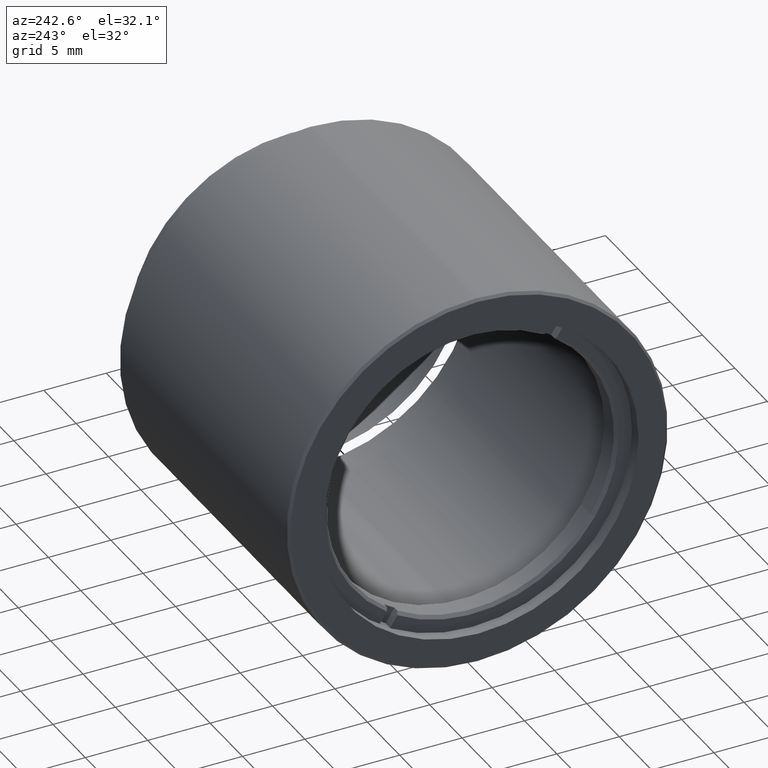
[diagram: clean part render]
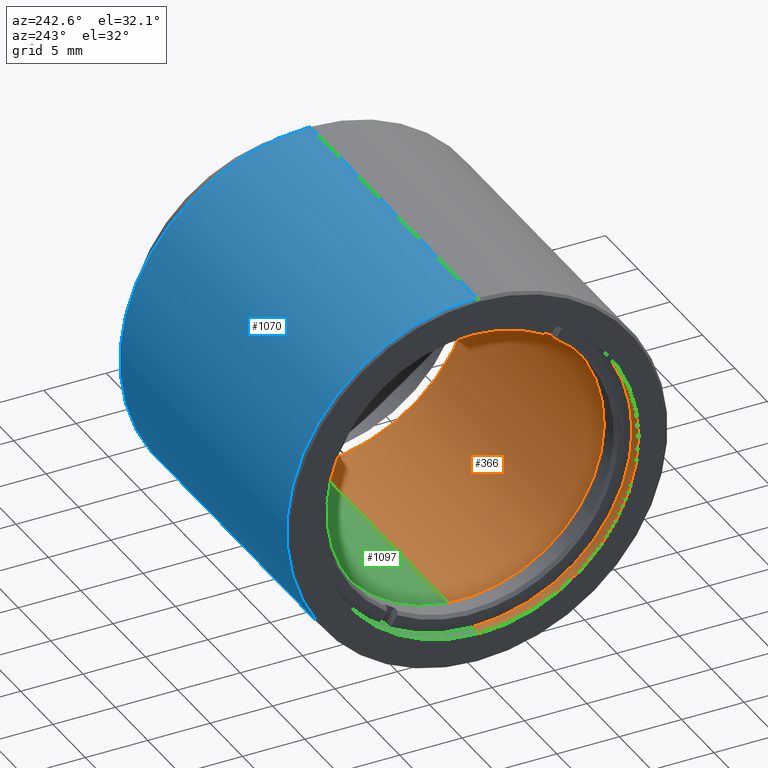
[diagram: same view with three faces highlighted in distinct colors, each labeled with its STEP entity id]
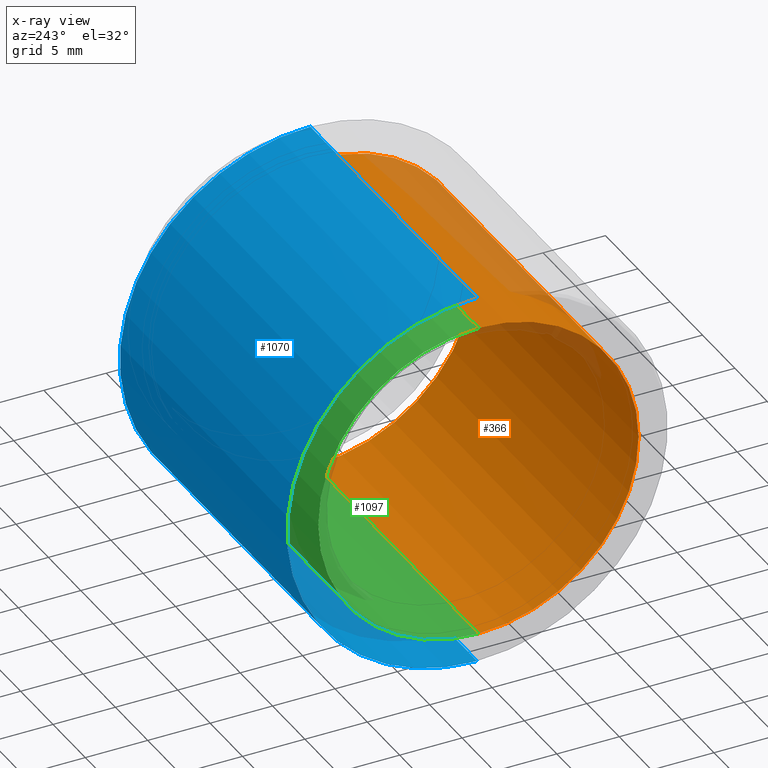
[diagram: x-ray of the same camera — body ghosted, the three highlighted faces saturated]
A machine part, auxiliary view with three faces highlighted in distinct colors.
The next image is the same camera in x-ray (body ghosted, the three faces saturated) — at least one of them is partly hidden behind the body in this view.
Their STEP definitions:

[orange] entity #366 — the highlighted cylindrical surface (partial cylindrical patch) has radius 12.827 mm, axis along (1, -0, -0).
#15 = CARTESIAN_POINT ( 'NONE',  ( 2.725999999999982659, -20.10857142857141966, -12.82699999999999818 ) ) ;
#18 = EDGE_CURVE ( 'NONE', #567, #865, #714, .T. ) ;
#34 = CARTESIAN_POINT ( 'NONE',  ( -22.67400000000001725, -20.10857142857141966, 12.82699999999999818 ) ) ;
#108 = AXIS2_PLACEMENT_3D ( 'NONE', #294, #181, #405 ) ;
#114 = CIRCLE ( 'NONE', #275, 12.82699999999999818 ) ;
#177 = CARTESIAN_POINT ( 'NONE',  ( -22.67400000000001725, -20.10857142857141966, 12.82699999999999818 ) ) ;
#181 = DIRECTION ( 'NONE',  ( -1.000000000000000000, 0.000000000000000000, 0.000000000000000000 ) ) ;
#275 = AXIS2_PLACEMENT_3D ( 'NONE', #1566, #1438, #590 ) ;
#292 = AXIS2_PLACEMENT_3D ( 'NONE', #1426, #1053, #701 ) ;
#294 = CARTESIAN_POINT ( 'NONE',  ( -22.67400000000001725, -20.10857142857141966, 0.000000000000000000 ) ) ;
#361 = CYLINDRICAL_SURFACE ( 'NONE', #292, 12.82699999999999818 ) ;
#366 = ADVANCED_FACE ( 'NONE', ( #434 ), #361, .F. ) ;
#405 = DIRECTION ( 'NONE',  ( 0.000000000000000000, 0.000000000000000000, 1.000000000000000000 ) ) ;
#434 = FACE_OUTER_BOUND ( 'NONE', #611, .T. ) ;
#437 = VECTOR ( 'NONE', #634, 1000.000000000000000 ) ;
#567 = VERTEX_POINT ( 'NONE', #1463 ) ;
#590 = DIRECTION ( 'NONE',  ( 0.000000000000000000, 0.000000000000000000, 1.000000000000000000 ) ) ;
#597 = CARTESIAN_POINT ( 'NONE',  ( 2.725999999999982659, -20.10857142857141966, 12.82699999999999818 ) ) ;
#611 = EDGE_LOOP ( 'NONE', ( #1219, #729, #923, #1237 ) ) ;
#634 = DIRECTION ( 'NONE',  ( 1.000000000000000000, -0.000000000000000000, -0.000000000000000000 ) ) ;
#644 = CARTESIAN_POINT ( 'NONE',  ( -22.67400000000001725, -20.10857142857141966, -12.82699999999999818 ) ) ;
#701 = DIRECTION ( 'NONE',  ( 0.000000000000000000, 0.000000000000000000, -1.000000000000000000 ) ) ;
#714 = CIRCLE ( 'NONE', #108, 12.82699999999999818 ) ;
#729 = ORIENTED_EDGE ( 'NONE', *, *, #1527, .T. ) ;
#852 = LINE ( 'NONE', #644, #437 ) ;
#865 = VERTEX_POINT ( 'NONE', #34 ) ;
#866 = VERTEX_POINT ( 'NONE', #15 ) ;
#923 = ORIENTED_EDGE ( 'NONE', *, *, #1087, .F. ) ;
#1053 = DIRECTION ( 'NONE',  ( 1.000000000000000000, -0.000000000000000000, -0.000000000000000000 ) ) ;
#1087 = EDGE_CURVE ( 'NONE', #866, #1146, #114, .T. ) ;
#1091 = VECTOR ( 'NONE', #1268, 1000.000000000000000 ) ;
#1146 = VERTEX_POINT ( 'NONE', #597 ) ;
#1169 = LINE ( 'NONE', #177, #1091 ) ;
#1219 = ORIENTED_EDGE ( 'NONE', *, *, #18, .T. ) ;
#1237 = ORIENTED_EDGE ( 'NONE', *, *, #1331, .F. ) ;
#1268 = DIRECTION ( 'NONE',  ( 1.000000000000000000, -0.000000000000000000, -0.000000000000000000 ) ) ;
#1331 = EDGE_CURVE ( 'NONE', #567, #866, #852, .T. ) ;
#1426 = CARTESIAN_POINT ( 'NONE',  ( -22.67400000000001725, -20.10857142857141966, 0.000000000000000000 ) ) ;
#1438 = DIRECTION ( 'NONE',  ( -1.000000000000000000, 0.000000000000000000, 0.000000000000000000 ) ) ;
#1463 = CARTESIAN_POINT ( 'NONE',  ( -22.67400000000001725, -20.10857142857141966, -12.82699999999999818 ) ) ;
#1527 = EDGE_CURVE ( 'NONE', #865, #1146, #1169, .T. ) ;
#1566 = CARTESIAN_POINT ( 'NONE',  ( 2.725999999999982659, -20.10857142857141966, 0.000000000000000000 ) ) ;

[blue] entity #1070 — the highlighted cylindrical surface (partial cylindrical patch) has radius 15.25 mm, axis along (-1, -0, -0).
#4 = VECTOR ( 'NONE', #1523, 1000.000000000000000 ) ;
#13 = DIRECTION ( 'NONE',  ( -1.000000000000000000, 0.000000000000000000, 0.000000000000000000 ) ) ;
#82 = VERTEX_POINT ( 'NONE', #640 ) ;
#83 = LINE ( 'NONE', #1529, #4 ) ;
#90 = CARTESIAN_POINT ( 'NONE',  ( 3.525999999999982926, -20.10857142857141966, 0.000000000000000000 ) ) ;
#125 = CARTESIAN_POINT ( 'NONE',  ( 3.325999999999985857, -20.10857142857141966, 0.000000000000000000 ) ) ;
#212 = DIRECTION ( 'NONE',  ( 1.000000000000000000, 0.000000000000000000, 0.000000000000000000 ) ) ;
#216 = AXIS2_PLACEMENT_3D ( 'NONE', #461, #212, #580 ) ;
#252 = AXIS2_PLACEMENT_3D ( 'NONE', #90, #441, #1577 ) ;
#312 = EDGE_CURVE ( 'NONE', #990, #1280, #1491, .T. ) ;
#441 = DIRECTION ( 'NONE',  ( -1.000000000000000000, -0.000000000000000000, -0.000000000000000000 ) ) ;
#461 = CARTESIAN_POINT ( 'NONE',  ( -22.47400000000001086, -20.10857142857141966, 0.000000000000000000 ) ) ;
#543 = ORIENTED_EDGE ( 'NONE', *, *, #1554, .F. ) ;
#579 = ORIENTED_EDGE ( 'NONE', *, *, #872, .T. ) ;
#580 = DIRECTION ( 'NONE',  ( 0.000000000000000000, 0.000000000000000000, 1.000000000000000000 ) ) ;
#600 = ORIENTED_EDGE ( 'NONE', *, *, #1259, .T. ) ;
#640 = CARTESIAN_POINT ( 'NONE',  ( 3.325999999999985857, -20.10857142857141611, -15.25000000000000000 ) ) ;
#718 = CYLINDRICAL_SURFACE ( 'NONE', #252, 15.25000000000000000 ) ;
#759 = VERTEX_POINT ( 'NONE', #1333 ) ;
#822 = CARTESIAN_POINT ( 'NONE',  ( -22.47400000000001086, -20.10857142857141966, -15.25000000000000000 ) ) ;
#859 = FACE_OUTER_BOUND ( 'NONE', #1336, .T. ) ;
#870 = CARTESIAN_POINT ( 'NONE',  ( -22.47400000000001086, -20.10857142857141611, 15.25000000000000000 ) ) ;
#872 = EDGE_CURVE ( 'NONE', #82, #990, #1525, .T. ) ;
#969 = DIRECTION ( 'NONE',  ( 0.000000000000000000, 0.000000000000000000, -1.000000000000000000 ) ) ;
#990 = VERTEX_POINT ( 'NONE', #822 ) ;
#1070 = ADVANCED_FACE ( 'NONE', ( #859 ), #718, .T. ) ;
#1259 = EDGE_CURVE ( 'NONE', #759, #82, #1399, .T. ) ;
#1280 = VERTEX_POINT ( 'NONE', #870 ) ;
#1327 = AXIS2_PLACEMENT_3D ( 'NONE', #125, #13, #969 ) ;
#1333 = CARTESIAN_POINT ( 'NONE',  ( 3.325999999999985857, -20.10857142857141966, 15.25000000000000000 ) ) ;
#1336 = EDGE_LOOP ( 'NONE', ( #600, #579, #1534, #543 ) ) ;
#1399 = CIRCLE ( 'NONE', #1327, 15.25000000000000000 ) ;
#1480 = CARTESIAN_POINT ( 'NONE',  ( 3.525999999999982926, -20.10857142857141611, -15.25000000000000000 ) ) ;
#1481 = DIRECTION ( 'NONE',  ( -1.000000000000000000, -0.000000000000000000, -0.000000000000000000 ) ) ;
#1484 = VECTOR ( 'NONE', #1481, 1000.000000000000000 ) ;
#1491 = CIRCLE ( 'NONE', #216, 15.25000000000000000 ) ;
#1523 = DIRECTION ( 'NONE',  ( -1.000000000000000000, -0.000000000000000000, -0.000000000000000000 ) ) ;
#1525 = LINE ( 'NONE', #1480, #1484 ) ;
#1529 = CARTESIAN_POINT ( 'NONE',  ( 3.525999999999982926, -20.10857142857141966, 15.25000000000000000 ) ) ;
#1534 = ORIENTED_EDGE ( 'NONE', *, *, #312, .T. ) ;
#1554 = EDGE_CURVE ( 'NONE', #759, #1280, #83, .T. ) ;
#1577 = DIRECTION ( 'NONE',  ( 0.000000000000000000, 0.000000000000000000, 1.000000000000000000 ) ) ;

[green] entity #1097 — the highlighted cylindrical surface (partial cylindrical patch) has radius 12.827 mm, axis along (1, -0, -0).
#15 = CARTESIAN_POINT ( 'NONE',  ( 2.725999999999982659, -20.10857142857141966, -12.82699999999999818 ) ) ;
#34 = CARTESIAN_POINT ( 'NONE',  ( -22.67400000000001725, -20.10857142857141966, 12.82699999999999818 ) ) ;
#115 = DIRECTION ( 'NONE',  ( 1.000000000000000000, -0.000000000000000000, -0.000000000000000000 ) ) ;
#118 = DIRECTION ( 'NONE',  ( 0.000000000000000000, 0.000000000000000000, 1.000000000000000000 ) ) ;
#152 = CARTESIAN_POINT ( 'NONE',  ( -22.67400000000001725, -20.10857142857141966, 0.000000000000000000 ) ) ;
#177 = CARTESIAN_POINT ( 'NONE',  ( -22.67400000000001725, -20.10857142857141966, 12.82699999999999818 ) ) ;
#208 = CIRCLE ( 'NONE', #1024, 12.82699999999999818 ) ;
#246 = CARTESIAN_POINT ( 'NONE',  ( 2.725999999999982659, -20.10857142857141966, 0.000000000000000000 ) ) ;
#251 = ORIENTED_EDGE ( 'NONE', *, *, #1331, .T. ) ;
#274 = EDGE_CURVE ( 'NONE', #865, #567, #208, .T. ) ;
#282 = DIRECTION ( 'NONE',  ( 0.000000000000000000, 0.000000000000000000, 1.000000000000000000 ) ) ;
#397 = AXIS2_PLACEMENT_3D ( 'NONE', #246, #1458, #118 ) ;
#437 = VECTOR ( 'NONE', #634, 1000.000000000000000 ) ;
#567 = VERTEX_POINT ( 'NONE', #1463 ) ;
#576 = CIRCLE ( 'NONE', #397, 12.82699999999999818 ) ;
#597 = CARTESIAN_POINT ( 'NONE',  ( 2.725999999999982659, -20.10857142857141966, 12.82699999999999818 ) ) ;
#634 = DIRECTION ( 'NONE',  ( 1.000000000000000000, -0.000000000000000000, -0.000000000000000000 ) ) ;
#644 = CARTESIAN_POINT ( 'NONE',  ( -22.67400000000001725, -20.10857142857141966, -12.82699999999999818 ) ) ;
#794 = FACE_OUTER_BOUND ( 'NONE', #1319, .T. ) ;
#797 = EDGE_CURVE ( 'NONE', #1146, #866, #576, .T. ) ;
#826 = ORIENTED_EDGE ( 'NONE', *, *, #1527, .F. ) ;
#852 = LINE ( 'NONE', #644, #437 ) ;
#865 = VERTEX_POINT ( 'NONE', #34 ) ;
#866 = VERTEX_POINT ( 'NONE', #15 ) ;
#995 = ORIENTED_EDGE ( 'NONE', *, *, #274, .T. ) ;
#1001 = DIRECTION ( 'NONE',  ( -1.000000000000000000, 0.000000000000000000, 0.000000000000000000 ) ) ;
#1024 = AXIS2_PLACEMENT_3D ( 'NONE', #152, #1001, #282 ) ;
#1078 = DIRECTION ( 'NONE',  ( 0.000000000000000000, 0.000000000000000000, -1.000000000000000000 ) ) ;
#1091 = VECTOR ( 'NONE', #1268, 1000.000000000000000 ) ;
#1097 = ADVANCED_FACE ( 'NONE', ( #794 ), #1403, .F. ) ;
#1135 = AXIS2_PLACEMENT_3D ( 'NONE', #1583, #115, #1078 ) ;
#1146 = VERTEX_POINT ( 'NONE', #597 ) ;
#1169 = LINE ( 'NONE', #177, #1091 ) ;
#1268 = DIRECTION ( 'NONE',  ( 1.000000000000000000, -0.000000000000000000, -0.000000000000000000 ) ) ;
#1318 = ORIENTED_EDGE ( 'NONE', *, *, #797, .F. ) ;
#1319 = EDGE_LOOP ( 'NONE', ( #826, #995, #251, #1318 ) ) ;
#1331 = EDGE_CURVE ( 'NONE', #567, #866, #852, .T. ) ;
#1403 = CYLINDRICAL_SURFACE ( 'NONE', #1135, 12.82699999999999818 ) ;
#1458 = DIRECTION ( 'NONE',  ( -1.000000000000000000, 0.000000000000000000, 0.000000000000000000 ) ) ;
#1463 = CARTESIAN_POINT ( 'NONE',  ( -22.67400000000001725, -20.10857142857141966, -12.82699999999999818 ) ) ;
#1527 = EDGE_CURVE ( 'NONE', #865, #1146, #1169, .T. ) ;
#1583 = CARTESIAN_POINT ( 'NONE',  ( -22.67400000000001725, -20.10857142857141966, 0.000000000000000000 ) ) ;